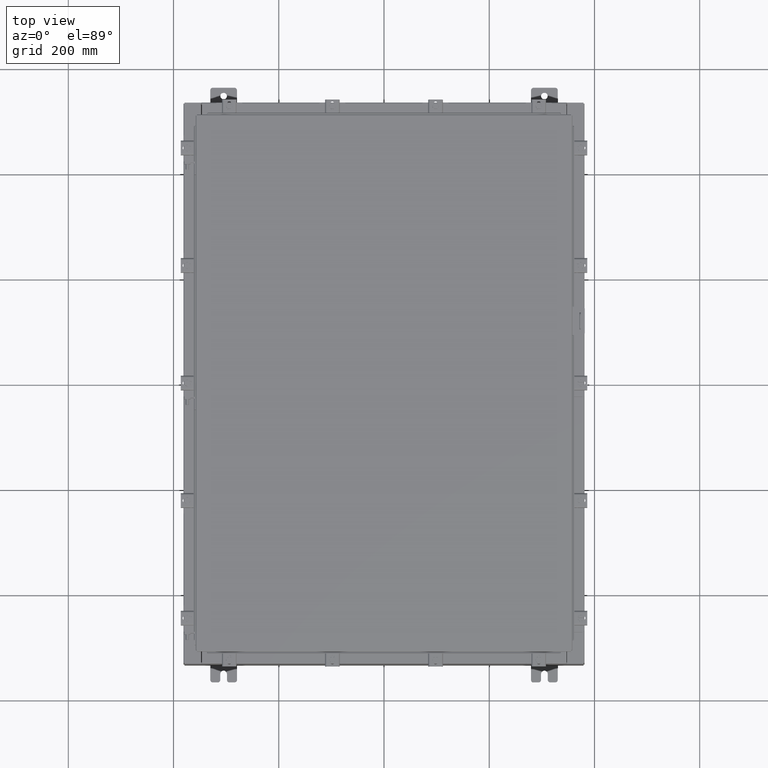
[diagram: clean part render]
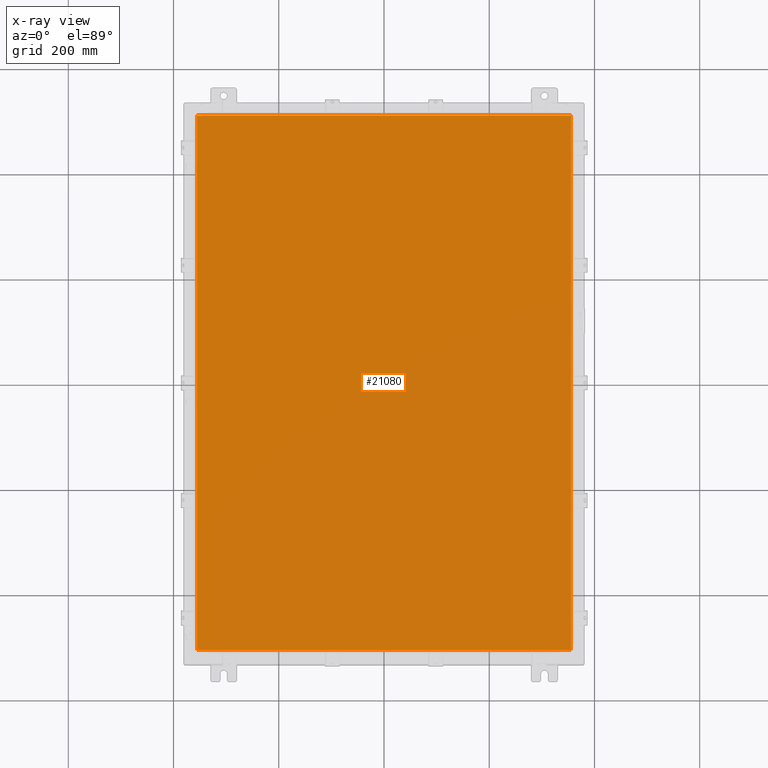
[diagram: x-ray — body ghosted, one internal face saturated and labeled with its STEP entity id]
A machine part, top view, then the same camera in x-ray: the body is ghosted and one INTERNAL B-rep face — a face not visible from any outside direction — is saturated and labeled: STEP entity #21080.
In plain terms, the highlighted planar face has unit normal (0, 0, -1).
Its self-contained STEP definition (entity closure, byte-faithful):
#293 = VECTOR ( 'NONE', #2693, 39.37007874015748100 ) ;
#360 = VERTEX_POINT ( 'NONE', #15703 ) ;
#2072 = VERTEX_POINT ( 'NONE', #11224 ) ;
#2693 = DIRECTION ( 'NONE',  ( -1.000000000000000000, -0.0000000000000000000, -0.0000000000000000000 ) ) ;
#3434 = CARTESIAN_POINT ( 'NONE',  ( 13.99030000000000000, -20.00630000000000300, -0.07470000000000125200 ) ) ;
#3963 = ORIENTED_EDGE ( 'NONE', *, *, #9575, .F. ) ;
#6459 = LINE ( 'NONE', #18420, #15987 ) ;
#7061 = VECTOR ( 'NONE', #13119, 39.37007874015748100 ) ;
#7075 = PLANE ( 'NONE',  #16570 ) ;
#8255 = LINE ( 'NONE', #3434, #8847 ) ;
#8293 = VERTEX_POINT ( 'NONE', #22836 ) ;
#8743 = EDGE_CURVE ( 'NONE', #360, #8293, #6459, .T. ) ;
#8847 = VECTOR ( 'NONE', #18641, 39.37007874015748100 ) ;
#8905 = CARTESIAN_POINT ( 'NONE',  ( 0.0000000000000000000, 0.0000000000000000000, -0.07470000000000015500 ) ) ;
#8997 = DIRECTION ( 'NONE',  ( 0.0000000000000000000, 0.0000000000000000000, -1.000000000000000000 ) ) ;
#9030 = FACE_OUTER_BOUND ( 'NONE', #17296, .T. ) ;
#9507 = EDGE_CURVE ( 'NONE', #13515, #2072, #8255, .T. ) ;
#9575 = EDGE_CURVE ( 'NONE', #8293, #13515, #15992, .T. ) ;
#11224 = CARTESIAN_POINT ( 'NONE',  ( 13.99030000000000000, 20.00630000000000300, -0.07470000000000015500 ) ) ;
#12041 = CARTESIAN_POINT ( 'NONE',  ( 13.99030000000000000, -20.00630000000000300, -0.07470000000000015500 ) ) ;
#13119 = DIRECTION ( 'NONE',  ( 1.000000000000000000, -0.0000000000000000000, -0.0000000000000000000 ) ) ;
#13515 = VERTEX_POINT ( 'NONE', #12041 ) ;
#15703 = CARTESIAN_POINT ( 'NONE',  ( -13.99029999999999800, 20.00630000000000300, -0.07470000000000015500 ) ) ;
#15981 = CARTESIAN_POINT ( 'NONE',  ( 13.99029999999999800, 20.00630000000000700, -0.07469999999999797600 ) ) ;
#15987 = VECTOR ( 'NONE', #24041, 39.37007874015748100 ) ;
#15992 = LINE ( 'NONE', #24518, #7061 ) ;
#16570 = AXIS2_PLACEMENT_3D ( 'NONE', #8905, #8997, #22311 ) ;
#17296 = EDGE_LOOP ( 'NONE', ( #20700, #3963, #18878, #19879 ) ) ;
#18420 = CARTESIAN_POINT ( 'NONE',  ( -13.99029999999999800, 20.00630000000000300, -0.07470000000000015500 ) ) ;
#18641 = DIRECTION ( 'NONE',  ( 0.0000000000000000000, 1.000000000000000000, 0.0000000000000000000 ) ) ;
#18878 = ORIENTED_EDGE ( 'NONE', *, *, #8743, .F. ) ;
#19879 = ORIENTED_EDGE ( 'NONE', *, *, #24581, .F. ) ;
#19913 = LINE ( 'NONE', #15981, #293 ) ;
#20700 = ORIENTED_EDGE ( 'NONE', *, *, #9507, .F. ) ;
#21080 = ADVANCED_FACE ( 'NONE', ( #9030 ), #7075, .T. ) ;
#22311 = DIRECTION ( 'NONE',  ( -1.000000000000000000, 0.0000000000000000000, -0.0000000000000000000 ) ) ;
#22836 = CARTESIAN_POINT ( 'NONE',  ( -13.99029999999999800, -20.00630000000000700, -0.07470000000000015500 ) ) ;
#24041 = DIRECTION ( 'NONE',  ( 0.0000000000000000000, -1.000000000000000000, 0.0000000000000000000 ) ) ;
#24518 = CARTESIAN_POINT ( 'NONE',  ( -13.99029999999999600, -20.00630000000001000, -0.07470000000000234800 ) ) ;
#24581 = EDGE_CURVE ( 'NONE', #2072, #360, #19913, .T. ) ;